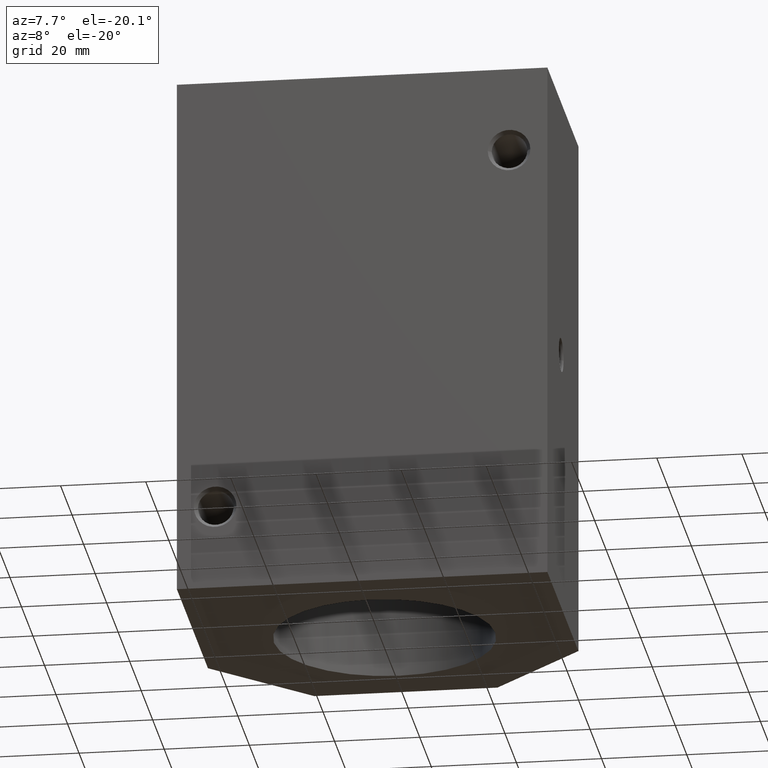
[diagram: clean part render]
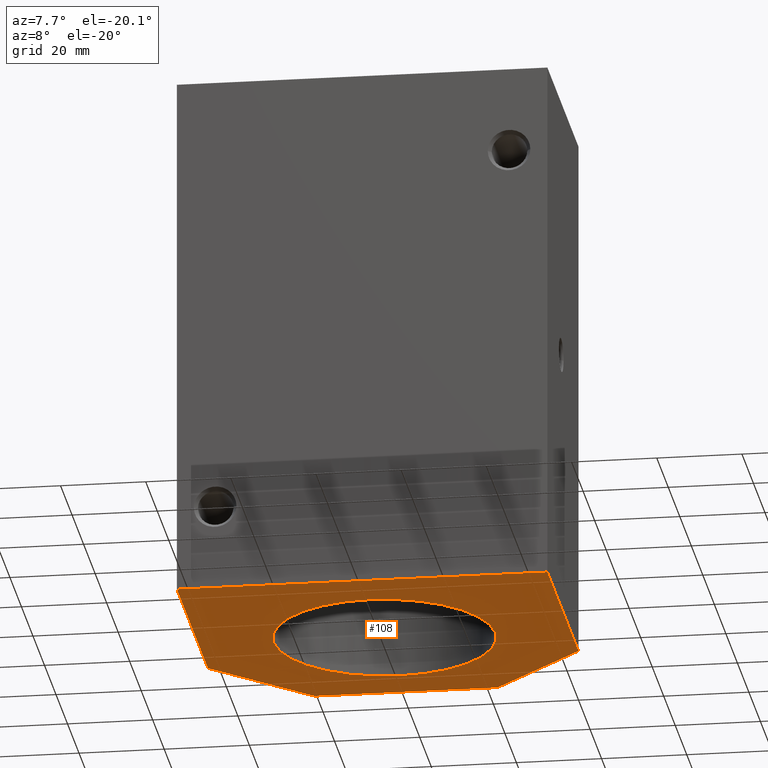
[diagram: same view with one face highlighted and labeled with its STEP entity id]
A machine part, auxiliary view. The second image highlights one B-rep face of the part: STEP entity #108.
In plain terms, the highlighted planar face has unit normal (0, 0, 1).
Its self-contained STEP definition (entity closure, byte-faithful):
#108 = ADVANCED_FACE( '', ( #187, #188 ), #189, .F. );
#187 = FACE_OUTER_BOUND( '', #267, .T. );
#188 = FACE_BOUND( '', #268, .T. );
#189 = PLANE( '', #269 );
#267 = EDGE_LOOP( '', ( #517, #518, #519, #520, #521, #522 ) );
#268 = EDGE_LOOP( '', ( #523, #524 ) );
#269 = AXIS2_PLACEMENT_3D( '', #525, #526, #527 );
#517 = ORIENTED_EDGE( '', *, *, #605, .F. );
#518 = ORIENTED_EDGE( '', *, *, #590, .F. );
#519 = ORIENTED_EDGE( '', *, *, #594, .F. );
#520 = ORIENTED_EDGE( '', *, *, #597, .F. );
#521 = ORIENTED_EDGE( '', *, *, #600, .F. );
#522 = ORIENTED_EDGE( '', *, *, #603, .F. );
#523 = ORIENTED_EDGE( '', *, *, #587, .T. );
#524 = ORIENTED_EDGE( '', *, *, #529, .T. );
#525 = CARTESIAN_POINT( '', ( 0.000000000000000, 0.000000000000000, 0.000000000000000 ) );
#526 = DIRECTION( '', ( 0.000000000000000, 0.000000000000000, 1.00000000000000 ) );
#527 = DIRECTION( '', ( 1.00000000000000, 0.000000000000000, 0.000000000000000 ) );
#529 = EDGE_CURVE( '', #609, #606, #610, .T. );
#587 = EDGE_CURVE( '', #606, #609, #703, .T. );
#590 = EDGE_CURVE( '', #707, #709, #710, .T. );
#594 = EDGE_CURVE( '', #714, #707, #716, .T. );
#597 = EDGE_CURVE( '', #719, #714, #721, .T. );
#600 = EDGE_CURVE( '', #724, #719, #726, .T. );
#603 = EDGE_CURVE( '', #729, #724, #731, .T. );
#605 = EDGE_CURVE( '', #709, #729, #733, .T. );
#606 = VERTEX_POINT( '', #734 );
#609 = VERTEX_POINT( '', #738 );
#610 = CIRCLE( '', #739, 26.0000000000000 );
#703 = CIRCLE( '', #919, 26.0000000000000 );
#707 = VERTEX_POINT( '', #924 );
#709 = VERTEX_POINT( '', #927 );
#710 = LINE( '', #928, #929 );
#714 = VERTEX_POINT( '', #935 );
#716 = LINE( '', #938, #939 );
#719 = VERTEX_POINT( '', #943 );
#721 = LINE( '', #946, #947 );
#724 = VERTEX_POINT( '', #951 );
#726 = LINE( '', #954, #955 );
#729 = VERTEX_POINT( '', #959 );
#731 = LINE( '', #962, #963 );
#733 = LINE( '', #966, #967 );
#734 = CARTESIAN_POINT( '', ( 26.0000000000000, 39.0000000000000, 0.000000000000000 ) );
#738 = CARTESIAN_POINT( '', ( -26.0000000000000, 39.0000000000000, 0.000000000000000 ) );
#739 = AXIS2_PLACEMENT_3D( '', #969, #970, #971 );
#919 = AXIS2_PLACEMENT_3D( '', #1095, #1096, #1097 );
#924 = CARTESIAN_POINT( '', ( -43.5000000000000, 54.0000000000000, 0.000000000000000 ) );
#927 = CARTESIAN_POINT( '', ( -43.5000000000000, 0.000000000000000, 0.000000000000000 ) );
#928 = CARTESIAN_POINT( '', ( -43.5000000000000, 54.0000000000000, 0.000000000000000 ) );
#929 = VECTOR( '', #1100, 1.00000000000000 );
#935 = CARTESIAN_POINT( '', ( -21.5000000000000, 76.0000000000000, 0.000000000000000 ) );
#938 = CARTESIAN_POINT( '', ( -21.5000000000000, 76.0000000000000, 0.000000000000000 ) );
#939 = VECTOR( '', #1104, 1.00000000000000 );
#943 = CARTESIAN_POINT( '', ( 21.5000000000000, 76.0000000000000, 0.000000000000000 ) );
#946 = CARTESIAN_POINT( '', ( 21.5000000000000, 76.0000000000000, 0.000000000000000 ) );
#947 = VECTOR( '', #1107, 1.00000000000000 );
#951 = CARTESIAN_POINT( '', ( 43.5000000000000, 54.0000000000000, 0.000000000000000 ) );
#954 = CARTESIAN_POINT( '', ( 43.5000000000000, 54.0000000000000, 0.000000000000000 ) );
#955 = VECTOR( '', #1110, 1.00000000000000 );
#959 = CARTESIAN_POINT( '', ( 43.5000000000000, 0.000000000000000, 0.000000000000000 ) );
#962 = CARTESIAN_POINT( '', ( 43.5000000000000, 0.000000000000000, 0.000000000000000 ) );
#963 = VECTOR( '', #1113, 1.00000000000000 );
#966 = CARTESIAN_POINT( '', ( -43.5000000000000, 0.000000000000000, 0.000000000000000 ) );
#967 = VECTOR( '', #1115, 1.00000000000000 );
#969 = CARTESIAN_POINT( '', ( 0.000000000000000, 39.0000000000000, 0.000000000000000 ) );
#970 = DIRECTION( '', ( 0.000000000000000, -0.000000000000000, 1.00000000000000 ) );
#971 = DIRECTION( '', ( 1.00000000000000, 0.000000000000000, 0.000000000000000 ) );
#1095 = CARTESIAN_POINT( '', ( 0.000000000000000, 39.0000000000000, 0.000000000000000 ) );
#1096 = DIRECTION( '', ( 0.000000000000000, -0.000000000000000, 1.00000000000000 ) );
#1097 = DIRECTION( '', ( 1.00000000000000, 0.000000000000000, 0.000000000000000 ) );
#1100 = DIRECTION( '', ( 0.000000000000000, -1.00000000000000, 0.000000000000000 ) );
#1104 = DIRECTION( '', ( -0.707106781186548, -0.707106781186548, 0.000000000000000 ) );
#1107 = DIRECTION( '', ( -1.00000000000000, 0.000000000000000, 0.000000000000000 ) );
#1110 = DIRECTION( '', ( -0.707106781186548, 0.707106781186548, 0.000000000000000 ) );
#1113 = DIRECTION( '', ( 0.000000000000000, 1.00000000000000, 0.000000000000000 ) );
#1115 = DIRECTION( '', ( 1.00000000000000, 0.000000000000000, 0.000000000000000 ) );